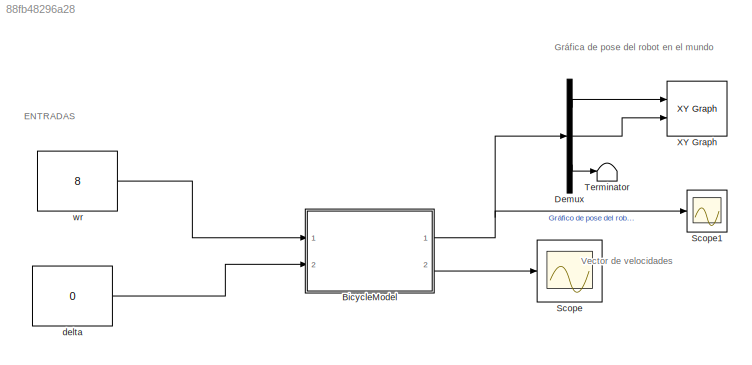
MODEL slx_88fb48296a28
KIND model
CONFIG AbsTol = auto
CONFIG EnableMultiTasking = off
CONFIG FixedStep = auto
CONFIG MaxStep = auto
CONFIG MinStep = auto
CONFIG RelTol = 1e-3
CONFIG SampleTimeConstraint = Unconstrained
CONFIG SolverName = VariableStepAuto
CONFIG StartTime = 0.0
CONFIG StopTime = 10
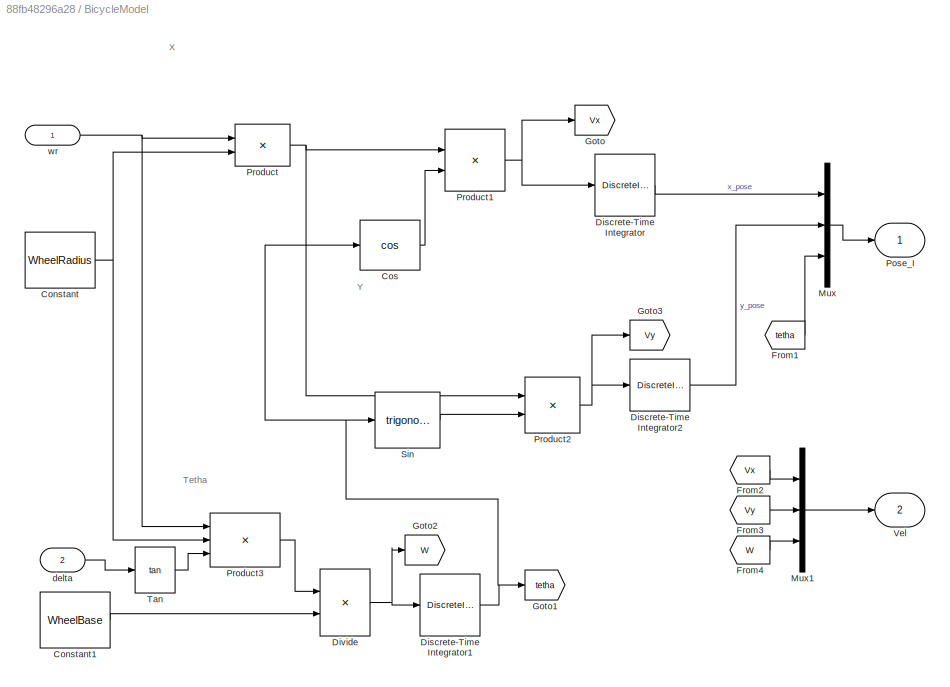
BLOCK [SubSystem] BicycleModel
  Ports = [2, 2]
  RequestExecContextInheritance = off
BLOCK [Constant] BicycleModel/Constant
  Value = WheelRadius
BLOCK [Constant] BicycleModel/Constant1
  Value = WheelBase
BLOCK [Trigonometry] BicycleModel/Cos
  Operator = cos
  Ports = [1, 1]
BLOCK [DiscreteIntegrator] BicycleModel/Discrete-Time Integrator
  ICPrevOutput = DiscIntNeverNeededParam
  ICPrevScaledInput = DiscIntNeverNeededParam
  InitialCondition = X_initial
  InitialConditionSetting = Auto
  Ports = [1, 1]
  SampleTime = sampleTime
BLOCK [DiscreteIntegrator] BicycleModel/Discrete-Time Integrator1
  ICPrevOutput = DiscIntNeverNeededParam
  ICPrevScaledInput = DiscIntNeverNeededParam
  InitialCondition = tetha_initial
  InitialConditionSetting = Auto
  Ports = [1, 1]
  SampleTime = sampleTime
BLOCK [DiscreteIntegrator] BicycleModel/Discrete-Time Integrator2
  ICPrevOutput = DiscIntNeverNeededParam
  ICPrevScaledInput = DiscIntNeverNeededParam
  InitialCondition = Y_initial
  InitialConditionSetting = Auto
  Ports = [1, 1]
  SampleTime = sampleTime
BLOCK [Product] BicycleModel/Divide
  Inputs = */
  Ports = [2, 1]
BLOCK [From] BicycleModel/From1
  GotoTag = tetha
BLOCK [From] BicycleModel/From2
  GotoTag = Vx
BLOCK [From] BicycleModel/From3
  GotoTag = Vy
BLOCK [From] BicycleModel/From4
  GotoTag = W
BLOCK [Goto] BicycleModel/Goto
  GotoTag = Vx
BLOCK [Goto] BicycleModel/Goto1
  GotoTag = tetha
BLOCK [Goto] BicycleModel/Goto2
  GotoTag = W
BLOCK [Goto] BicycleModel/Goto3
  GotoTag = Vy
BLOCK [Mux] BicycleModel/Mux
  DisplayOption = bar
  Inputs = 3
  Ports = [3, 1]
BLOCK [Mux] BicycleModel/Mux1
  DisplayOption = bar
  Inputs = 3
  Ports = [3, 1]
BLOCK [Outport] BicycleModel/Pose_I
BLOCK [Product] BicycleModel/Product
  Ports = [2, 1]
BLOCK [Product] BicycleModel/Product1
  Ports = [2, 1]
BLOCK [Product] BicycleModel/Product2
  Ports = [2, 1]
BLOCK [Product] BicycleModel/Product3
  Inputs = 3
  Ports = [3, 1]
BLOCK [Trigonometry] BicycleModel/Sin
  Ports = [1, 1]
BLOCK [Trigonometry] BicycleModel/Tan
  Operator = tan
  Ports = [1, 1]
BLOCK [Outport] BicycleModel/Vel
  Port = 2
BLOCK [Inport] BicycleModel/delta
  Port = 2
BLOCK [Inport] BicycleModel/wr
BLOCK [Demux] Demux
  Outputs = 3
  Ports = [1, 3]
BLOCK [Scope] Scope
  Floating = off
  NumInputPorts = 1
  Ports = [1]
  ScopeSpecificationString = Simulink.scopes.TimeScopeBlockCfg('CurrentConfiguration', extmgr.ConfigurationSet(extmgr.Configuration('Core','General UI',true),extmgr.Configuration('Core','Source UI',true),extmgr.Configuration('Sources','WiredSimulink',true),extmgr.Configuration('Visuals','Time Domain',true,'SerializedDisplays',{struct('MinYLimReal','-0.5','MaxYLimReal','4.5','YLabelReal','','MinYLimMag','0.00000','MaxYLimMag',...<+1350ch>
BLOCK [Scope] Scope1
  Floating = off
  NumInputPorts = 1
  Ports = [1]
  ScopeSpecificationString = Simulink.scopes.TimeScopeBlockCfg('CurrentConfiguration', extmgr.ConfigurationSet(extmgr.Configuration('Core','General UI',true),extmgr.Configuration('Core','Source UI',true),extmgr.Configuration('Sources','WiredSimulink',true,'DataLoggingVariableName','ScopeData1'),extmgr.Configuration('Visuals','Time Domain',true,'SerializedDisplays',{struct('MinYLimReal','-5.00000','MaxYLimReal','45.00000','YLa...<+1446ch>
BLOCK [Terminator] Terminator
BLOCK [Reference] XY Graph  REF=simulink/Sinks/XY Graph
  Ports = [2]
  SourceBlock = simulink/Sinks/XY Graph
  SourceProductBaseCode = SL
  SourceType = XY scope.
BLOCK [Constant] delta
  Value = 0
BLOCK [Constant] wr
  Value = 8
ANNOTATION (root): ENTRADAS
ANNOTATION (root): Gráfica de pose del robot en el mundo
ANNOTATION (root): Vector de velocidades
ANNOTATION BicycleModel: Tetha
ANNOTATION BicycleModel: X
ANNOTATION BicycleModel: Y
LINE BicycleModel/Constant1:1 -> BicycleModel/Divide:2
NET BicycleModel/Constant:1 -> BicycleModel/Product3:2, BicycleModel/Product:2
LINE BicycleModel/Cos:1 -> BicycleModel/Product1:2
NET BicycleModel/Discrete-Time Integrator1:1 -> BicycleModel/Cos:1, BicycleModel/Goto1:1, BicycleModel/Sin:1
LINE BicycleModel/Discrete-Time Integrator2:1 -> BicycleModel/Mux:2
LINE BicycleModel/Discrete-Time Integrator:1 -> BicycleModel/Mux:1
NET BicycleModel/Divide:1 -> BicycleModel/Discrete-Time Integrator1:1, BicycleModel/Goto2:1
LINE BicycleModel/From1:1 -> BicycleModel/Mux:3
LINE BicycleModel/From2:1 -> BicycleModel/Mux1:1
LINE BicycleModel/From3:1 -> BicycleModel/Mux1:2
LINE BicycleModel/From4:1 -> BicycleModel/Mux1:3
LINE BicycleModel/Mux1:1 -> BicycleModel/Vel:1
LINE BicycleModel/Mux:1 -> BicycleModel/Pose_I:1
NET BicycleModel/Product1:1 -> BicycleModel/Discrete-Time Integrator:1, BicycleModel/Goto:1
NET BicycleModel/Product2:1 -> BicycleModel/Discrete-Time Integrator2:1, BicycleModel/Goto3:1
LINE BicycleModel/Product3:1 -> BicycleModel/Divide:1
NET BicycleModel/Product:1 -> BicycleModel/Product1:1, BicycleModel/Product2:1
LINE BicycleModel/Sin:1 -> BicycleModel/Product2:2
LINE BicycleModel/Tan:1 -> BicycleModel/Product3:3
LINE BicycleModel/delta:1 -> BicycleModel/Tan:1
NET BicycleModel/wr:1 -> BicycleModel/Product3:1, BicycleModel/Product:1
NET BicycleModel:1 -> Demux:1, Scope1:1
LINE BicycleModel:2 -> Scope:1
LINE Demux:1 -> XY Graph:1
LINE Demux:2 -> XY Graph:2
LINE Demux:3 -> Terminator:1
LINE delta:1 -> BicycleModel:2
LINE wr:1 -> BicycleModel:1
note: NET lines group one-source signal fan-out (src -> all destinations, sorted); 1:1 wires keep LINE
